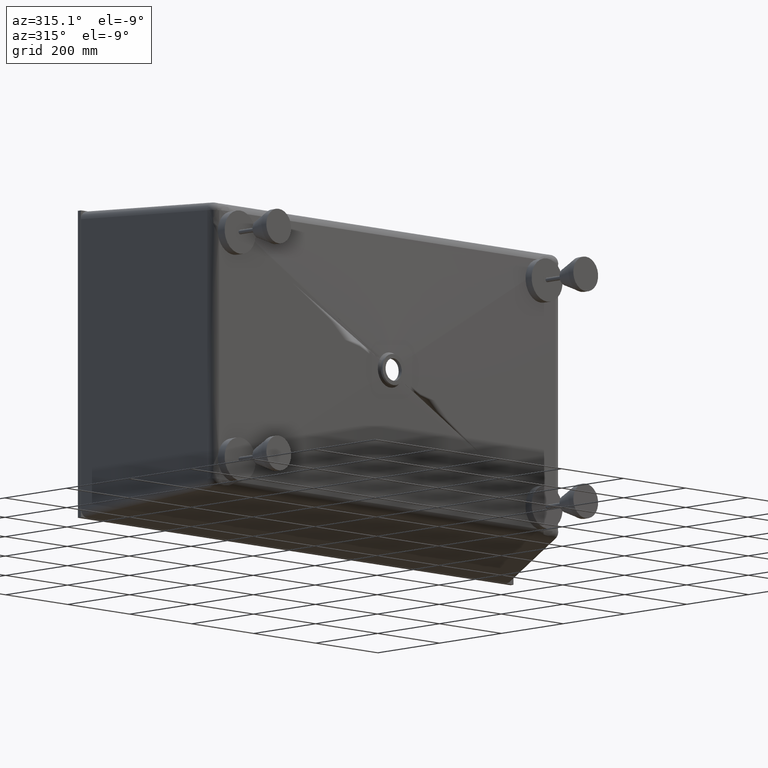
[diagram: clean part render]
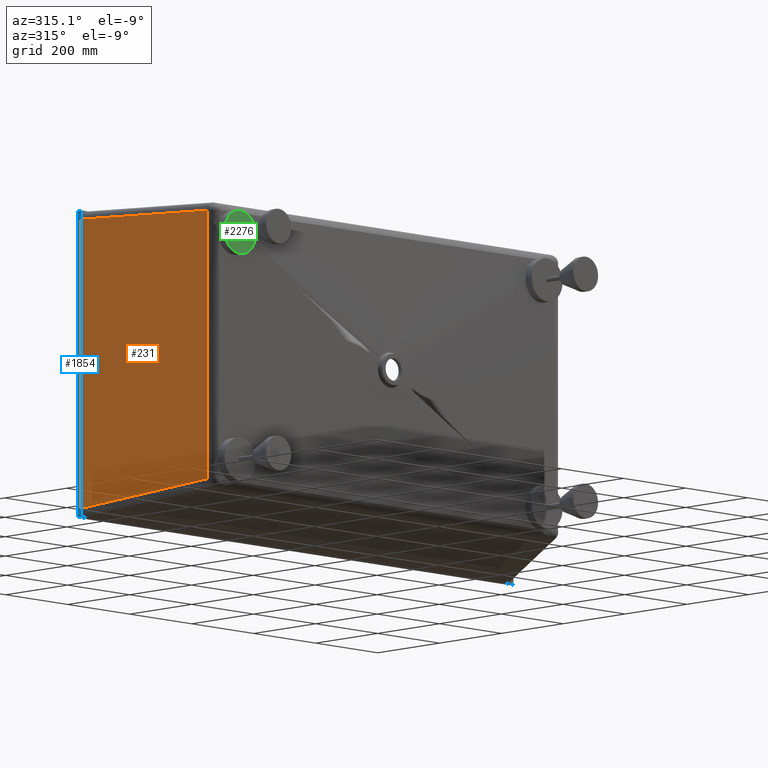
[diagram: same view with three faces highlighted in distinct colors, each labeled with its STEP entity id]
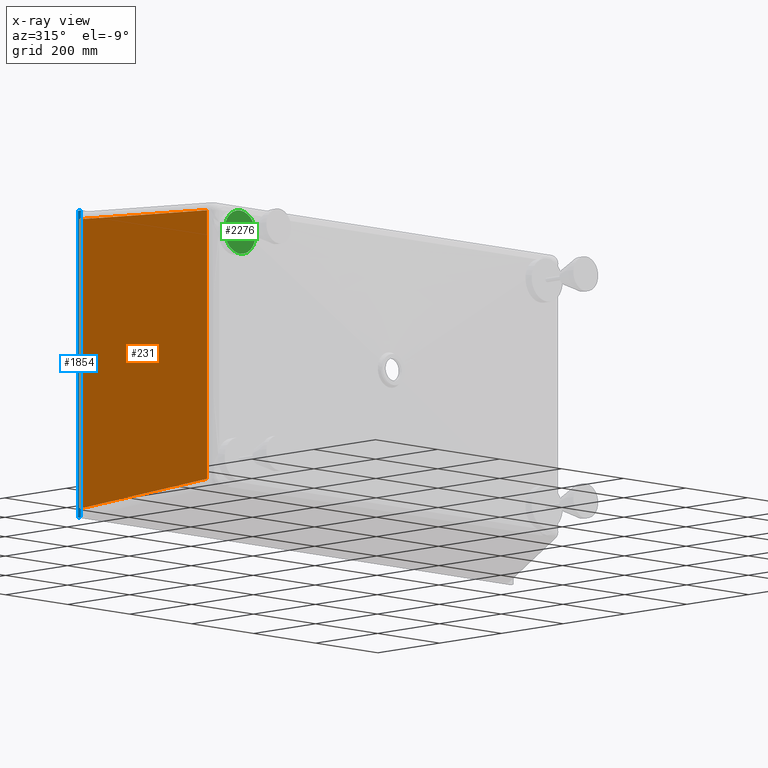
[diagram: x-ray of the same camera — body ghosted, the three highlighted faces saturated]
A machine part, auxiliary view with three faces highlighted in distinct colors.
The next image is the same camera in x-ray (body ghosted, the three faces saturated) — at least one of them is partly hidden behind the body in this view.
Their STEP definitions:

[orange] entity #231 — the highlighted planar face has unit normal (0.9999, 0.0118, 0).
#229 = ORIENTED_EDGE ( 'NONE', *, *, #8440, .T. ) ;
#231 = ADVANCED_FACE ( 'NONE', ( #4476 ), #7526, .F. ) ;
#233 = CARTESIAN_POINT ( 'NONE',  ( -565.0006985767206500, 0.0000000000000000000, 334.9965212431911300 ) ) ;
#581 = VERTEX_POINT ( 'NONE', #3112 ) ;
#844 = EDGE_LOOP ( 'NONE', ( #2785, #1332, #229, #7250 ) ) ;
#1332 = ORIENTED_EDGE ( 'NONE', *, *, #6963, .T. ) ;
#1514 = CARTESIAN_POINT ( 'NONE',  ( -560.1134799048235200, -413.4586996425051700, -310.5604278837051900 ) ) ;
#2299 = EDGE_CURVE ( 'NONE', #9925, #5530, #8588, .T. ) ;
#2665 = CARTESIAN_POINT ( 'NONE',  ( -560.1134799048234100, -413.4586996425052200, 310.5604278837050700 ) ) ;
#2677 = CARTESIAN_POINT ( 'NONE',  ( -560.1134691576604600, -413.4596088524905900, 205.2767003580649400 ) ) ;
#2714 = CARTESIAN_POINT ( 'NONE',  ( -560.1134626063343400, -413.4601630946806900, 99.99297282787786400 ) ) ;
#2733 = CARTESIAN_POINT ( 'NONE',  ( -560.1134628199198500, -413.4601450253487100, -5.290754701687279600 ) ) ;
#2747 = CARTESIAN_POINT ( 'NONE',  ( -560.1134630263497900, -413.4601275613676400, -107.0473124301658500 ) ) ;
#2785 = ORIENTED_EDGE ( 'NONE', *, *, #4627, .T. ) ;
#2893 = CARTESIAN_POINT ( 'NONE',  ( -560.1134799048235200, -413.4586996425051700, -310.5604278837051900 ) ) ;
#3112 = CARTESIAN_POINT ( 'NONE',  ( -560.1134799048234100, -413.4586996425052200, 310.5604278837050700 ) ) ;
#3196 = CARTESIAN_POINT ( 'NONE',  ( -560.1134695177073600, -413.4595783925318500, -208.8038701590200200 ) ) ;
#3301 = DIRECTION ( 'NONE',  ( -0.01179891927792739600, 0.9981885709126791000, 0.05899459638963804700 ) ) ;
#3396 = LINE ( 'NONE', #7183, #7377 ) ;
#3500 = VERTEX_POINT ( 'NONE', #1514 ) ;
#4476 = FACE_OUTER_BOUND ( 'NONE', #844, .T. ) ;
#4627 = EDGE_CURVE ( 'NONE', #9925, #3500, #3396, .T. ) ;
#5530 = VERTEX_POINT ( 'NONE', #233 ) ;
#5640 = DIRECTION ( 'NONE',  ( -0.0000000000000000000, 0.0000000000000000000, 1.000000000000000000 ) ) ;
#5678 = VECTOR ( 'NONE', #3301, 1000.000000000000000 ) ;
#5808 = CARTESIAN_POINT ( 'NONE',  ( -565.0006985767205400, 0.0000000000000000000, -0.0000000000000000000 ) ) ;
#6157 = VECTOR ( 'NONE', #5640, 1000.000000000000000 ) ;
#6963 = EDGE_CURVE ( 'NONE', #3500, #581, #9710, .T. ) ;
#7151 = DIRECTION ( 'NONE',  ( 0.01179891927792739400, -0.9981885709126789900, 0.05899459638963830400 ) ) ;
#7183 = CARTESIAN_POINT ( 'NONE',  ( -560.0236713624037700, -421.0565023312108200, -310.1113851716067400 ) ) ;
#7250 = ORIENTED_EDGE ( 'NONE', *, *, #2299, .F. ) ;
#7372 = CARTESIAN_POINT ( 'NONE',  ( -565.0006985767206500, 0.0000000000000000000, -334.9965212431913500 ) ) ;
#7377 = VECTOR ( 'NONE', #7151, 1000.000000000000100 ) ;
#7526 = PLANE ( 'NONE',  #7922 ) ;
#7595 = DIRECTION ( 'NONE',  ( -0.01181950528614264400, 0.9999301472076890200, 0.0000000000000000000 ) ) ;
#7922 = AXIS2_PLACEMENT_3D ( 'NONE', #9340, #8881, #7595 ) ;
#8143 = LINE ( 'NONE', #9706, #5678 ) ;
#8440 = EDGE_CURVE ( 'NONE', #581, #5530, #8143, .T. ) ;
#8588 = LINE ( 'NONE', #5808, #6157 ) ;
#8881 = DIRECTION ( 'NONE',  ( 0.9999301472076891400, 0.01181950528614264500, 0.0000000000000000000 ) ) ;
#9340 = CARTESIAN_POINT ( 'NONE',  ( -559.9993014720769200, -423.1181950528614400, -345.0001000000000300 ) ) ;
#9706 = CARTESIAN_POINT ( 'NONE',  ( -559.5433812115510400, -461.6890490933599300, 307.7099344173425400 ) ) ;
#9710 = B_SPLINE_CURVE_WITH_KNOTS ( 'NONE', 3,
 ( #2893, #3196, #2747, #2733, #2714, #2677, #2665 ),
 .UNSPECIFIED., .F., .F.,
 ( 4, 3, 4 ),
 ( 0.0000000000000000000, 0.3052696731854401800, 0.6211208557744116700 ),
 .UNSPECIFIED. ) ;
#9925 = VERTEX_POINT ( 'NONE', #7372 ) ;

[blue] entity #1854 — the highlighted planar face has unit normal (-1, 0, 0).
#141 = LINE ( 'NONE', #1512, #2421 ) ;
#644 = EDGE_CURVE ( 'NONE', #8206, #8046, #4252, .T. ) ;
#1160 = LINE ( 'NONE', #9882, #1390 ) ;
#1390 = VECTOR ( 'NONE', #9845, 1000.000000000000000 ) ;
#1512 = CARTESIAN_POINT ( 'NONE',  ( -564.9999999999998900, -10.00000000000000000, 355.0000000000000000 ) ) ;
#1694 = ORIENTED_EDGE ( 'NONE', *, *, #9041, .T. ) ;
#1854 = ADVANCED_FACE ( 'NONE', ( #9384 ), #10007, .T. ) ;
#1958 = ORIENTED_EDGE ( 'NONE', *, *, #644, .F. ) ;
#1999 = VERTEX_POINT ( 'NONE', #8632 ) ;
#2421 = VECTOR ( 'NONE', #3738, 1000.000000000000000 ) ;
#2462 = AXIS2_PLACEMENT_3D ( 'NONE', #10110, #9953, #9939 ) ;
#2624 = DIRECTION ( 'NONE',  ( 0.0000000000000000000, 1.000000000000000000, 0.0000000000000000000 ) ) ;
#3122 = EDGE_CURVE ( 'NONE', #8046, #1999, #1160, .T. ) ;
#3227 = CARTESIAN_POINT ( 'NONE',  ( -565.0000000000000000, -10.00000000000000000, -355.0000000000000600 ) ) ;
#3510 = LINE ( 'NONE', #9303, #9480 ) ;
#3738 = DIRECTION ( 'NONE',  ( 0.0000000000000000000, 1.000000000000000000, 0.0000000000000000000 ) ) ;
#4252 = LINE ( 'NONE', #3227, #8055 ) ;
#4289 = CARTESIAN_POINT ( 'NONE',  ( -565.0000000000000000, 0.0000000000000000000, -355.0000000000000600 ) ) ;
#4595 = VERTEX_POINT ( 'NONE', #6447 ) ;
#5333 = ORIENTED_EDGE ( 'NONE', *, *, #5759, .T. ) ;
#5759 = EDGE_CURVE ( 'NONE', #8206, #4595, #3510, .T. ) ;
#6447 = CARTESIAN_POINT ( 'NONE',  ( -564.9999999999998900, -10.00000000000000000, 355.0000000000000000 ) ) ;
#6848 = CARTESIAN_POINT ( 'NONE',  ( -565.0000000000000000, -10.00000000000000000, -355.0000000000000600 ) ) ;
#8046 = VERTEX_POINT ( 'NONE', #4289 ) ;
#8055 = VECTOR ( 'NONE', #2624, 1000.000000000000000 ) ;
#8206 = VERTEX_POINT ( 'NONE', #6848 ) ;
#8632 = CARTESIAN_POINT ( 'NONE',  ( -564.9999999999998900, 0.0000000000000000000, 355.0000000000000000 ) ) ;
#8652 = EDGE_LOOP ( 'NONE', ( #9640, #1958, #5333, #1694 ) ) ;
#9041 = EDGE_CURVE ( 'NONE', #4595, #1999, #141, .T. ) ;
#9271 = DIRECTION ( 'NONE',  ( 1.563694400880502300E-016, 0.0000000000000000000, 1.000000000000000000 ) ) ;
#9303 = CARTESIAN_POINT ( 'NONE',  ( -565.0000000000000000, -10.00000000000000000, -355.0000000000000600 ) ) ;
#9384 = FACE_OUTER_BOUND ( 'NONE', #8652, .T. ) ;
#9480 = VECTOR ( 'NONE', #9271, 1000.000000000000000 ) ;
#9640 = ORIENTED_EDGE ( 'NONE', *, *, #3122, .F. ) ;
#9845 = DIRECTION ( 'NONE',  ( 1.563694400880502300E-016, 0.0000000000000000000, 1.000000000000000000 ) ) ;
#9882 = CARTESIAN_POINT ( 'NONE',  ( -565.0000000000000000, 0.0000000000000000000, -355.0000000000000600 ) ) ;
#9939 = DIRECTION ( 'NONE',  ( 1.563694400880502300E-016, 0.0000000000000000000, 1.000000000000000000 ) ) ;
#9953 = DIRECTION ( 'NONE',  ( -1.000000000000000000, 0.0000000000000000000, 1.563694400880502300E-016 ) ) ;
#10007 = PLANE ( 'NONE',  #2462 ) ;
#10110 = CARTESIAN_POINT ( 'NONE',  ( -565.0000000000000000, -10.00000000000000000, -355.0000000000000600 ) ) ;

[green] entity #2276 — the highlighted planar face has unit normal (0, 1, 0).
#1505 = ORIENTED_EDGE ( 'NONE', *, *, #6570, .F. ) ;
#1752 = EDGE_LOOP ( 'NONE', ( #1505, #8835 ) ) ;
#1993 = EDGE_CURVE ( 'NONE', #6925, #4769, #2958, .T. ) ;
#2276 = ADVANCED_FACE ( 'NONE', ( #6383, #8318 ), #5819, .F. ) ;
#2447 = ORIENTED_EDGE ( 'NONE', *, *, #1993, .F. ) ;
#2784 = CARTESIAN_POINT ( 'NONE',  ( -495.0000000000000600, -455.0000000000000000, 312.4999999999998900 ) ) ;
#2913 = DIRECTION ( 'NONE',  ( 0.0000000000000000000, 0.0000000000000000000, 1.000000000000000000 ) ) ;
#2943 = DIRECTION ( 'NONE',  ( 0.0000000000000000000, 1.000000000000000000, 0.0000000000000000000 ) ) ;
#2945 = CARTESIAN_POINT ( 'NONE',  ( -495.0000000000000600, -455.0000000000000000, 262.4999999999998900 ) ) ;
#2958 = CIRCLE ( 'NONE', #6819, 49.99999999999998600 ) ;
#3771 = AXIS2_PLACEMENT_3D ( 'NONE', #2945, #2943, #2913 ) ;
#3808 = CARTESIAN_POINT ( 'NONE',  ( -495.0000000000000600, -455.0000000000000000, 257.4999999999998900 ) ) ;
#4432 = DIRECTION ( 'NONE',  ( 0.0000000000000000000, 0.0000000000000000000, 1.000000000000000000 ) ) ;
#4461 = DIRECTION ( 'NONE',  ( -0.0000000000000000000, -1.000000000000000000, -0.0000000000000000000 ) ) ;
#4492 = CARTESIAN_POINT ( 'NONE',  ( -495.0000000000000600, -455.0000000000000000, 262.4999999999998900 ) ) ;
#4650 = CARTESIAN_POINT ( 'NONE',  ( -495.0000000000000600, -455.0000000000000000, 267.4999999999998900 ) ) ;
#4769 = VERTEX_POINT ( 'NONE', #5746 ) ;
#5083 = AXIS2_PLACEMENT_3D ( 'NONE', #4492, #4461, #4432 ) ;
#5094 = VERTEX_POINT ( 'NONE', #4650 ) ;
#5322 = AXIS2_PLACEMENT_3D ( 'NONE', #5884, #5961, #5795 ) ;
#5542 = CIRCLE ( 'NONE', #3771, 49.99999999999998600 ) ;
#5746 = CARTESIAN_POINT ( 'NONE',  ( -495.0000000000000600, -455.0000000000000000, 212.4999999999999100 ) ) ;
#5795 = DIRECTION ( 'NONE',  ( 0.0000000000000000000, -0.0000000000000000000, 1.000000000000000000 ) ) ;
#5819 = PLANE ( 'NONE',  #5322 ) ;
#5884 = CARTESIAN_POINT ( 'NONE',  ( -495.0000000000000600, -455.0000000000000000, 262.4999999999998900 ) ) ;
#5961 = DIRECTION ( 'NONE',  ( 0.0000000000000000000, 1.000000000000000000, 0.0000000000000000000 ) ) ;
#6043 = EDGE_LOOP ( 'NONE', ( #7850, #2447 ) ) ;
#6125 = DIRECTION ( 'NONE',  ( 0.0000000000000000000, 0.0000000000000000000, 1.000000000000000000 ) ) ;
#6132 = DIRECTION ( 'NONE',  ( -0.0000000000000000000, -1.000000000000000000, -0.0000000000000000000 ) ) ;
#6147 = CARTESIAN_POINT ( 'NONE',  ( -495.0000000000000600, -455.0000000000000000, 262.4999999999998900 ) ) ;
#6383 = FACE_BOUND ( 'NONE', #1752, .T. ) ;
#6570 = EDGE_CURVE ( 'NONE', #5094, #6663, #8695, .T. ) ;
#6663 = VERTEX_POINT ( 'NONE', #3808 ) ;
#6819 = AXIS2_PLACEMENT_3D ( 'NONE', #8038, #8012, #8001 ) ;
#6925 = VERTEX_POINT ( 'NONE', #2784 ) ;
#7850 = ORIENTED_EDGE ( 'NONE', *, *, #9372, .F. ) ;
#7871 = CIRCLE ( 'NONE', #10028, 5.000000000000004400 ) ;
#8001 = DIRECTION ( 'NONE',  ( 0.0000000000000000000, 0.0000000000000000000, 1.000000000000000000 ) ) ;
#8012 = DIRECTION ( 'NONE',  ( 0.0000000000000000000, 1.000000000000000000, 0.0000000000000000000 ) ) ;
#8038 = CARTESIAN_POINT ( 'NONE',  ( -495.0000000000000600, -455.0000000000000000, 262.4999999999998900 ) ) ;
#8318 = FACE_OUTER_BOUND ( 'NONE', #6043, .T. ) ;
#8695 = CIRCLE ( 'NONE', #5083, 5.000000000000004400 ) ;
#8835 = ORIENTED_EDGE ( 'NONE', *, *, #10140, .F. ) ;
#9372 = EDGE_CURVE ( 'NONE', #4769, #6925, #5542, .T. ) ;
#10028 = AXIS2_PLACEMENT_3D ( 'NONE', #6147, #6132, #6125 ) ;
#10140 = EDGE_CURVE ( 'NONE', #6663, #5094, #7871, .T. ) ;